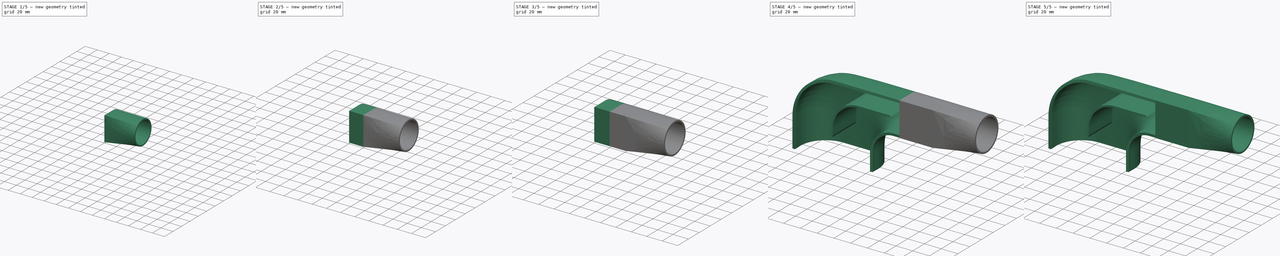
[diagram: build sequence overview — one tinted view per stage of 5, left to right]
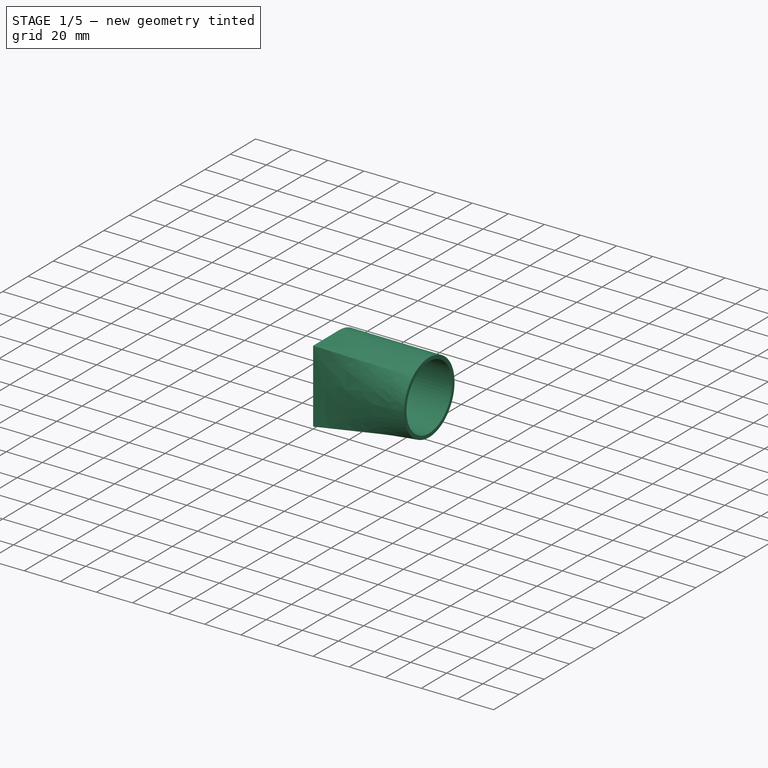
[diagram: stage 1 of 5 — iso view after this stage's code; geometry added in this stage tinted green]
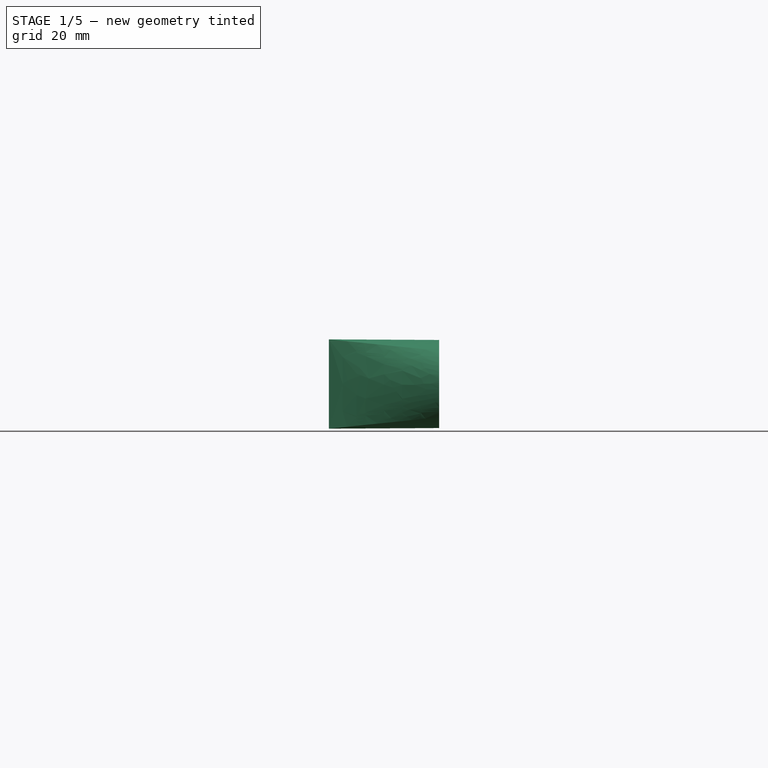
[diagram: stage 1 of 5 — front view after this stage's code; geometry added in this stage tinted green]
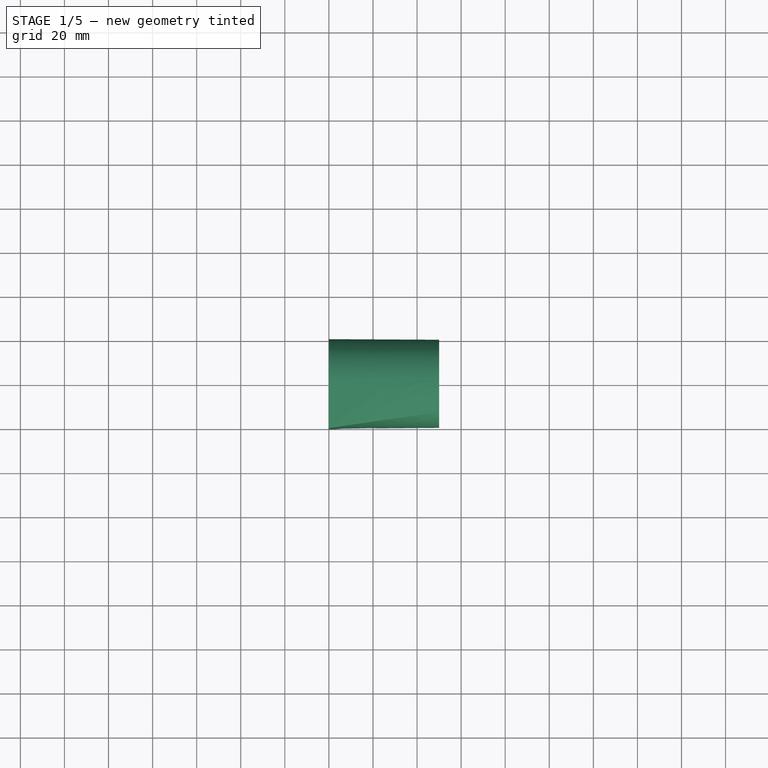
[diagram: stage 1 of 5 — top view after this stage's code; geometry added in this stage tinted green]
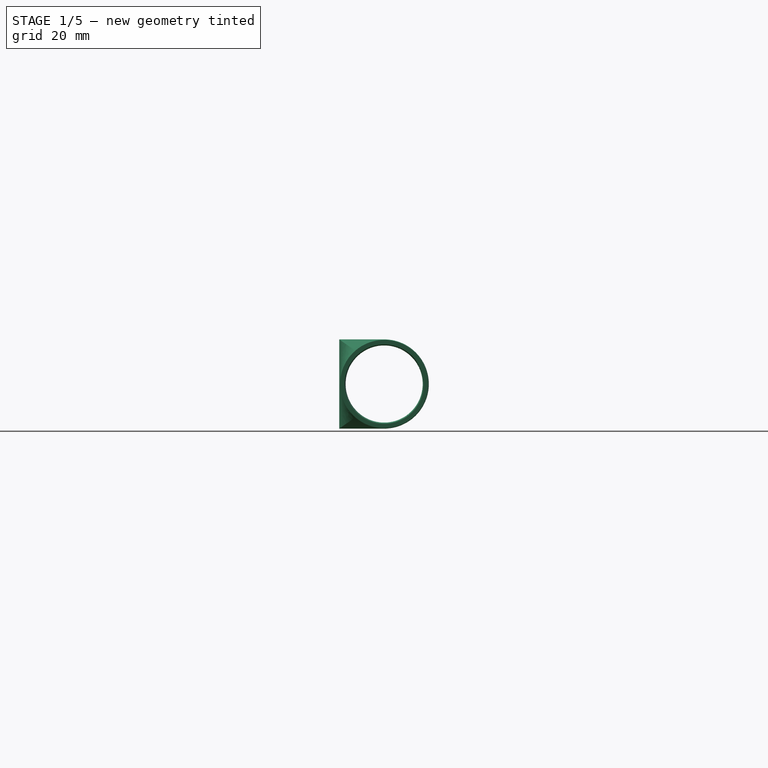
[diagram: stage 1 of 5 — right view after this stage's code; geometry added in this stage tinted green]
FCSTD DOCUMENT  (FreeCAD 2021.911R24301 +3846 (Git))
Label: router
License: All rights reserved
LicenseURL: http://en.wikipedia.org/wiki/All_rights_reserved
objects: Sketcher::SketchObject×8, Sketcher::SketchExport×8, Part::Loft×6, Part::FeaturePython×5, Part::MultiFuse×4, Part::Cut×3, Part::RuledSurface×1, App::FeaturePython×1, Part::Offset×1, Part::Extrusion×1
note: 38 computed .brp shape members not serialized (recipe doc carries the construction recipe); baked Part::Feature solids carry a one-line shape summary decoded from their .brp

FEATURE [Sketcher::SketchObject] Sketch007
  Exports = -> [Export006,Export007]
  ExternalGeometry = -> [Sketch006]
  FullyConstrained = true
  Placement = pos=(170,0,0) rot=(0.57735,0.57735,0.57735;2.0944rad)
  sketch-geometry (2):
    g0: Circle CenterX=20.4075 CenterY=65.897 CenterZ=0 NormalX=0 NormalY=0 NormalZ=1 AngleXU=0 Radius=18
    g1: Circle CenterX=20.4075 CenterY=65.897 CenterZ=0 NormalX=0 NormalY=0 NormalZ=1 AngleXU=0 Radius=20
  constraints (4):
    c: Coincident(g0,g-3)
    c: Coincident(g1,g0)
    c: Diameter(g1) = 40
    c: Diameter(g0) = 36
FEATURE [Sketcher::SketchExport] Export006
  Base = -> Sketch007
  BaseRefs = -> Sketch007 [edge2]
  Placement = pos=(170,0,0) rot=(0.57735,0.57735,0.57735;2.0944rad)
  Refs = ;g3.edge2
  SyncPlacement = true
FEATURE [Sketcher::SketchExport] Export007
  Base = -> Sketch007
  BaseRefs = -> Sketch007 [edge1]
  Placement = pos=(170,0,0) rot=(0.57735,0.57735,0.57735;2.0944rad)
  Refs = ;g2.edge1
  SyncPlacement = true
FEATURE [Part::Loft] Loft004
  Closed = false
  MaxDegree = 5
  Ruled = false
  Sections = -> [Export005,Export007]
  Solid = true
FEATURE [Part::Loft] Loft005
  Closed = false
  MaxDegree = 5
  Ruled = false
  Sections = -> [Export004,Export006]
  Solid = true
FEATURE [Part::Cut] Cut002
  Base = -> Loft005
  Refine = true
  Tool = -> Loft004
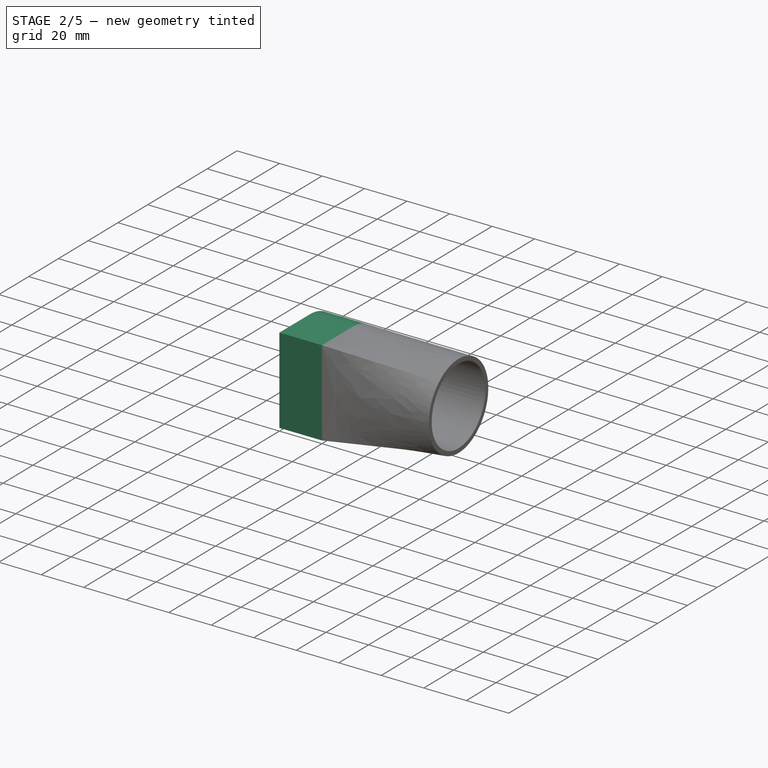
[diagram: stage 2 of 5 — iso view after this stage's code; geometry added in this stage tinted green]
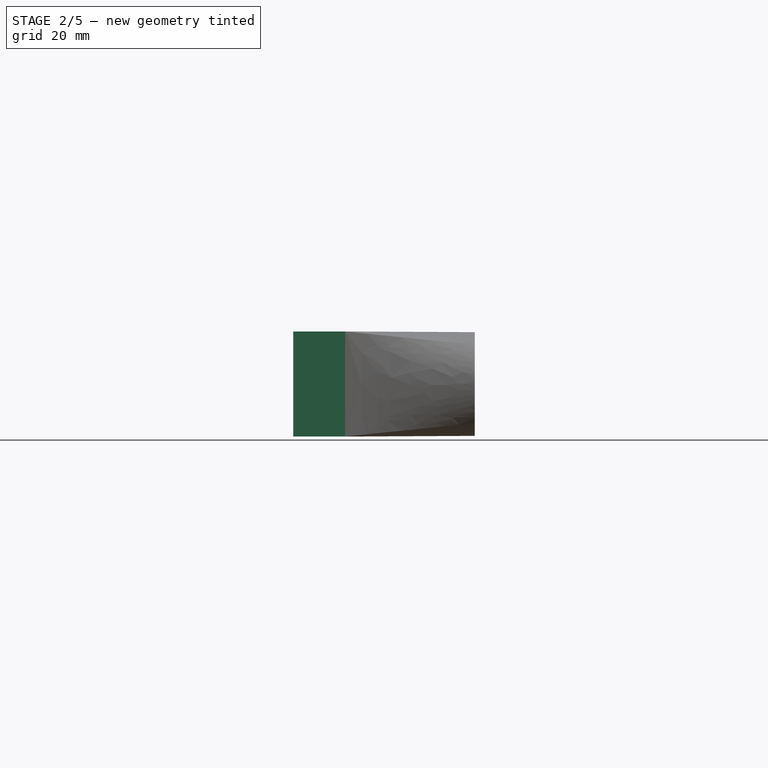
[diagram: stage 2 of 5 — front view after this stage's code; geometry added in this stage tinted green]
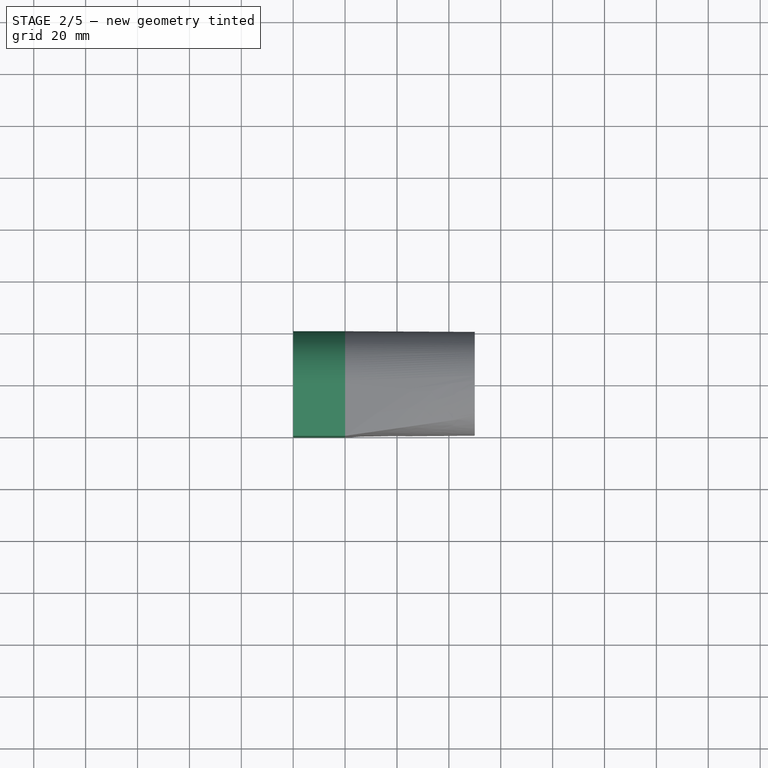
[diagram: stage 2 of 5 — top view after this stage's code; geometry added in this stage tinted green]
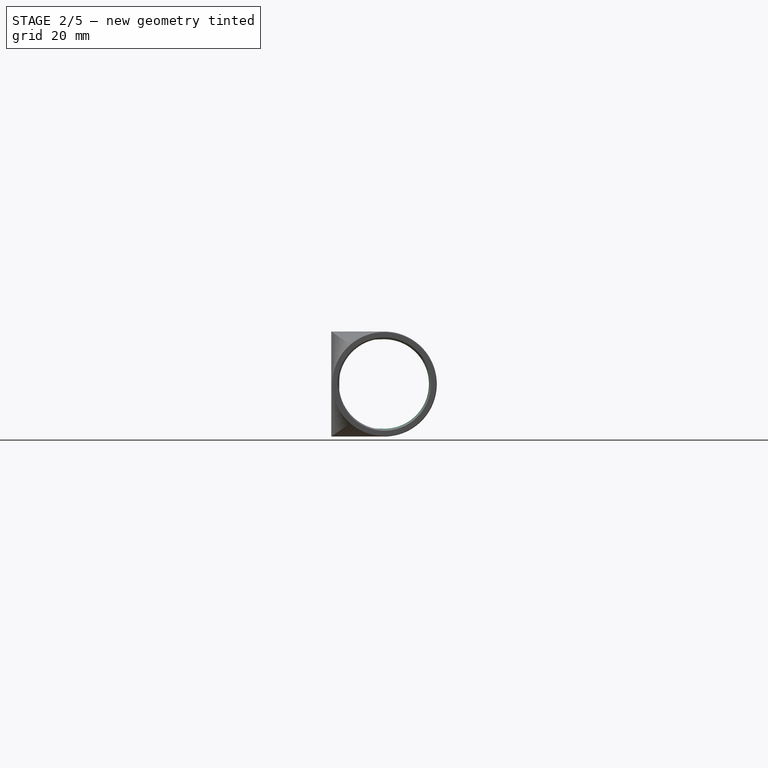
[diagram: stage 2 of 5 — right view after this stage's code; geometry added in this stage tinted green]
FEATURE [Sketcher::SketchObject] Sketch006
  Exports = -> [Export004,Export005]
  ExternalGeometry = -> [Sketch005]
  FullyConstrained = true
  Placement = pos=(120,0,0) rot=(0.57735,0.57735,0.57735;2.0944rad)
  sketch-geometry (5):
    g0: Circle CenterX=20.4075 CenterY=65.897 CenterZ=0 NormalX=0 NormalY=0 NormalZ=1 AngleXU=0 Radius=17.5
    g1: ArcOfCircle CenterX=20.4075 CenterY=65.897 CenterZ=0 NormalX=0 NormalY=0 NormalZ=1 AngleXU=0 Radius=20.25 StartAngle=4.71239 EndAngle=7.85398
    g2: LineSegment StartX=20.4075 StartY=86.147 StartZ=0 EndX=0 EndY=86.147 EndZ=0
    g3: LineSegment StartX=0 StartY=86.147 StartZ=0 EndX=0 EndY=45.647 EndZ=0
    g4: LineSegment StartX=0 StartY=45.647 StartZ=0 EndX=20.4075 EndY=45.647 EndZ=0
  constraints (11):
    c: Coincident(g0,g-4)
    c: Coincident(g1,g0)
    c: Coincident(g1,g-3)
    c: Coincident(g1,g-3)
    c: Coincident(g2,g1)
    c: Coincident(g2,g-6)
    c: Coincident(g3,g2)
    c: Coincident(g3,g-5)
    c: Coincident(g4,g3)
    c: Coincident(g4,g1)
    c: Diameter(g0) = 35
FEATURE [Sketcher::SketchExport] Export004
  Base = -> Sketch006
  BaseRefs = -> Sketch006 [edge3,edge2,edge5,edge4]
  Placement = pos=(120,0,0) rot=(0.57735,0.57735,0.57735;2.0944rad)
  Refs = ;g7.edge3 | ;g4.edge2 | ;g9.edge5 | ;g8.edge4
  SyncPlacement = true
FEATURE [Sketcher::SketchExport] Export005
  Base = -> Sketch006
  BaseRefs = -> Sketch006 [edge1]
  Placement = pos=(120,0,0) rot=(0.57735,0.57735,0.57735;2.0944rad)
  Refs = ;g3.edge1
  SyncPlacement = true
FEATURE [Part::Loft] Loft002
  Closed = false
  MaxDegree = 5
  Ruled = false
  Sections = -> [Export003,Export005]
  Solid = true
FEATURE [Part::Loft] Loft003
  Closed = false
  MaxDegree = 5
  Ruled = false
  Sections = -> [Export002,Export004]
  Solid = true
FEATURE [Part::Cut] Cut001
  Base = -> Loft003
  Refine = true
  Tool = -> Loft002
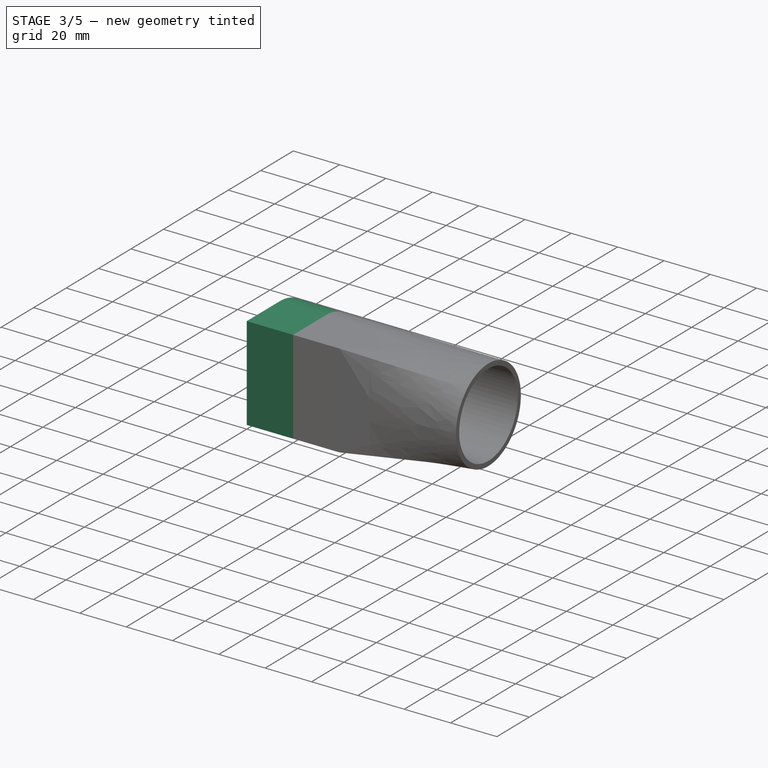
[diagram: stage 3 of 5 — iso view after this stage's code; geometry added in this stage tinted green]
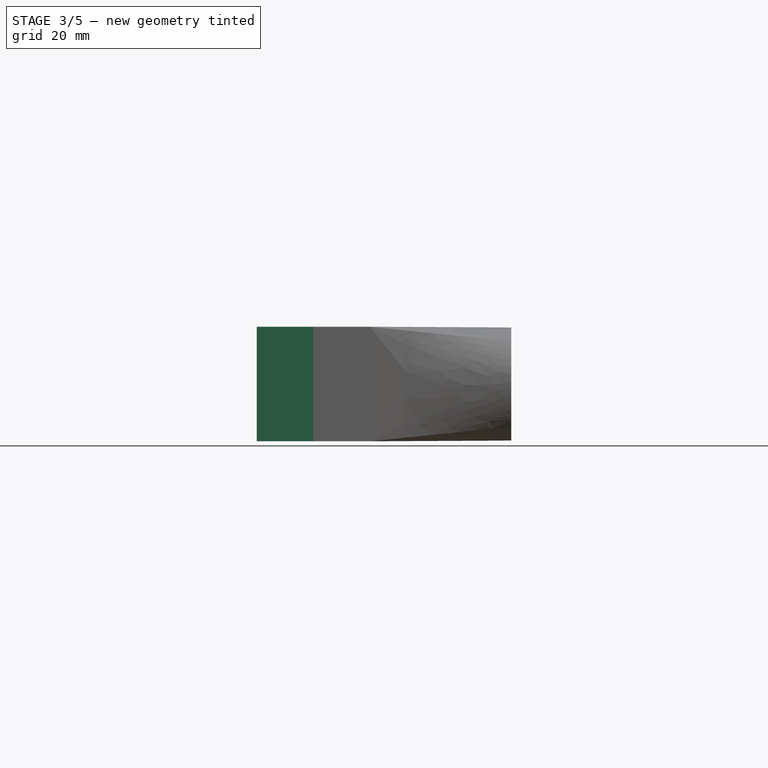
[diagram: stage 3 of 5 — front view after this stage's code; geometry added in this stage tinted green]
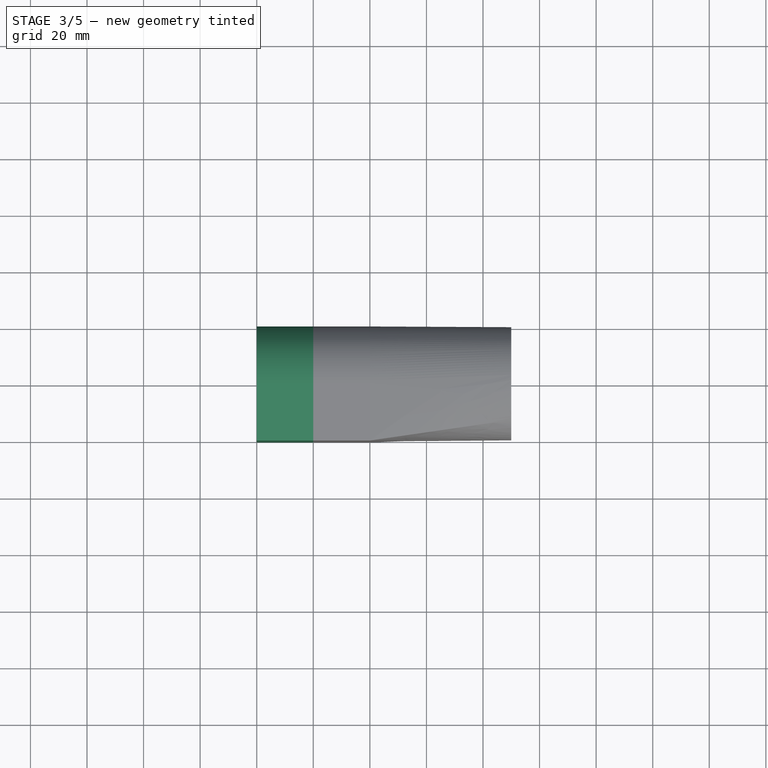
[diagram: stage 3 of 5 — top view after this stage's code; geometry added in this stage tinted green]
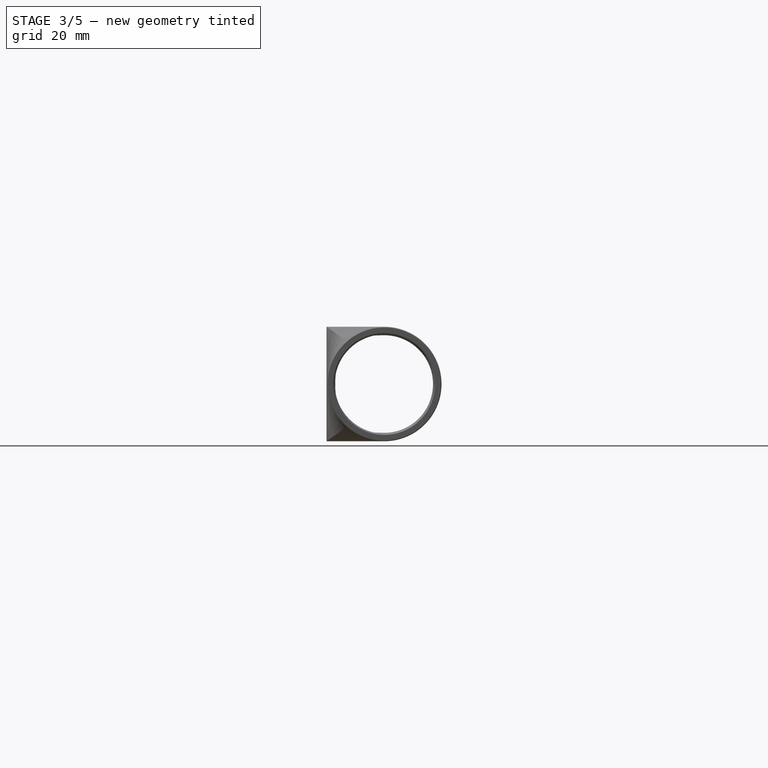
[diagram: stage 3 of 5 — right view after this stage's code; geometry added in this stage tinted green]
FEATURE [Sketcher::SketchObject] Sketch004
  Exports = -> [Export001,Export]
  ExternalGeometry = -> [Fusion,Approximation_Curve]
  FullyConstrained = true
  Placement = pos=(80,0,0) rot=(0.57735,0.57735,0.57735;2.0944rad)
  sketch-geometry (9):
    g0: ArcOfCircle CenterX=20.4075 CenterY=65.897 CenterZ=0 NormalX=0 NormalY=0 NormalZ=1 AngleXU=0 Radius=17.25 StartAngle=4.71239 EndAngle=7.85398
    g1: LineSegment [constr] StartX=20.4075 StartY=65.897 StartZ=0 EndX=1.78e-14 EndY=65.897 EndZ=0
    g2: LineSegment StartX=0.2 StartY=83.147 StartZ=0 EndX=0.2 EndY=48.647 EndZ=0
    g3: LineSegment StartX=20.4075 StartY=83.147 StartZ=0 EndX=0.2 EndY=83.147 EndZ=0
    g4: LineSegment StartX=0.2 StartY=48.647 StartZ=0 EndX=20.4075 EndY=48.647 EndZ=0
    g5: LineSegment StartX=0 StartY=86.147 StartZ=0 EndX=20.4075 EndY=86.147 EndZ=0
    g6: LineSegment StartX=0 StartY=45.647 StartZ=0 EndX=20.4075 EndY=45.647 EndZ=0
    g7: LineSegment StartX=0 StartY=86.147 StartZ=0 EndX=0 EndY=45.647 EndZ=0
    g8: ArcOfCircle CenterX=20.4075 CenterY=65.897 CenterZ=0 NormalX=0 NormalY=0 NormalZ=1 AngleXU=0 Radius=20.25 StartAngle=4.71239 EndAngle=7.85398
  constraints (25):
    c: Coincident(g1,g0)
    c: Horizontal(g1)
    c: Diameter(g0) = 34.5
    c: DistanceX(g-3,g0) = 20
    c: Vertical(g2)
    c: Horizontal(g3)
    c: Coincident(g2,g3)
    c: Symmetric(g-4,g-4,g1)
    c: DistanceX(g-4,g2) = 0.2
    c: Coincident(g4,g2)
    c: Horizontal(g4)
    c: Tangent(g4,g0) = -1.5708
    c: Tangent(g3,g0) = -1.5708
    c: PointOnObject(g5,g-2)
    c: Horizontal(g5)
    c: PointOnObject(g6,g-2)
    c: Horizontal(g6)
    c: Vertical(g3,g5)
    c: Vertical(g0,g6)
    c: Coincident(g7,g5)
    c: Coincident(g8,g0)
    c: Coincident(g8,g5)
    c: Coincident(g8,g6)
    c: DistanceY(g0,g5) = 3
    c: Coincident(g6,g7)
FEATURE [Sketcher::SketchObject] Sketch005
  Exports = -> [Export002,Export003]
  ExternalGeometry = -> [Sketch004]
  FullyConstrained = true
  Placement = pos=(100,0,0) rot=(0.57735,0.57735,0.57735;2.0944rad)
  sketch-geometry (8):
    g0: ArcOfCircle CenterX=20.4075 CenterY=65.897 CenterZ=0 NormalX=0 NormalY=0 NormalZ=1 AngleXU=0 Radius=20.25 StartAngle=4.71239 EndAngle=7.85398
    g1: ArcOfCircle CenterX=20.4075 CenterY=65.897 CenterZ=0 NormalX=0 NormalY=0 NormalZ=1 AngleXU=0 Radius=17.25 StartAngle=4.71239 EndAngle=7.85398
    g2: LineSegment StartX=20.4075 StartY=83.147 StartZ=0 EndX=3 EndY=83.147 EndZ=0
    g3: LineSegment StartX=3 StartY=83.147 StartZ=0 EndX=3 EndY=48.647 EndZ=0
    g4: LineSegment StartX=3 StartY=48.647 StartZ=0 EndX=20.4075 EndY=48.647 EndZ=0
    g5: LineSegment StartX=20.4075 StartY=86.147 StartZ=0 EndX=0 EndY=86.147 EndZ=0
    g6: LineSegment StartX=0 StartY=86.147 StartZ=0 EndX=0 EndY=45.647 EndZ=0
    g7: LineSegment StartX=0 StartY=45.647 StartZ=0 EndX=20.4075 EndY=45.647 EndZ=0
  constraints (20):
    c: Coincident(g0,g-4)
    c: Coincident(g0,g-4)
    c: Coincident(g0,g-5)
    c: Coincident(g1,g0)
    c: Coincident(g1,g-6)
    c: Coincident(g1,g-6)
    c: Coincident(g2,g1)
    c: Horizontal(g2)
    c: Coincident(g3,g2)
    c: Vertical(g3)
    c: Coincident(g4,g3)
    c: Coincident(g4,g1)
    c: Horizontal(g4)
    c: DistanceX(g2) = 3
    c: Coincident(g5,g0)
    c: Coincident(g5,g-3)
    c: Coincident(g6,g5)
    c: Coincident(g6,g-5)
    c: Coincident(g7,g6)
    c: Coincident(g7,g0)
FEATURE [Sketcher::SketchExport] Export001
  Base = -> Sketch004
  BaseRefs = -> Sketch004 [edge3,edge4,edge1,edge5]
  Placement = pos=(80,0,0) rot=(0.57735,0.57735,0.57735;2.0944rad)
  Refs = ;g10.edge3 | ;g11.edge4 | ;g9.edge1 | ;g8.edge5
  SyncPlacement = true
FEATURE [Sketcher::SketchExport] Export
  Base = -> Sketch004
  BaseRefs = -> Sketch004 [edge8,edge6,edge9,edge7]
  Placement = pos=(80,0,0) rot=(0.57735,0.57735,0.57735;2.0944rad)
  Refs = ;g15.edge8 | ;g13.edge6 | ;g16.edge9 | ;g14.edge7
  SyncPlacement = true
FEATURE [Sketcher::SketchExport] Export002
  Base = -> Sketch005
  BaseRefs = -> Sketch005 [edge6,edge1,edge8,edge7]
  Placement = pos=(100,0,0) rot=(0.57735,0.57735,0.57735;2.0944rad)
  Refs = ;g11.edge6 | ;g5.edge1 | ;g13.edge8 | ;g12.edge7
  SyncPlacement = true
FEATURE [Sketcher::SketchExport] Export003
  Base = -> Sketch005
  BaseRefs = -> Sketch005 [edge3,edge2,edge5,edge4]
  Placement = pos=(100,0,0) rot=(0.57735,0.57735,0.57735;2.0944rad)
  Refs = ;g8.edge3 | ;g6.edge2 | ;g10.edge5 | ;g9.edge4
  SyncPlacement = true
FEATURE [Part::Loft] Loft
  Closed = false
  MaxDegree = 5
  Ruled = false
  Sections = -> [Export001,Export003]
  Solid = true
FEATURE [Part::Loft] Loft001
  Closed = false
  MaxDegree = 5
  Ruled = false
  Sections = -> [Export,Export002]
  Solid = true
FEATURE [Part::Cut] Cut
  Base = -> Loft001
  Refine = true
  Tool = -> Loft
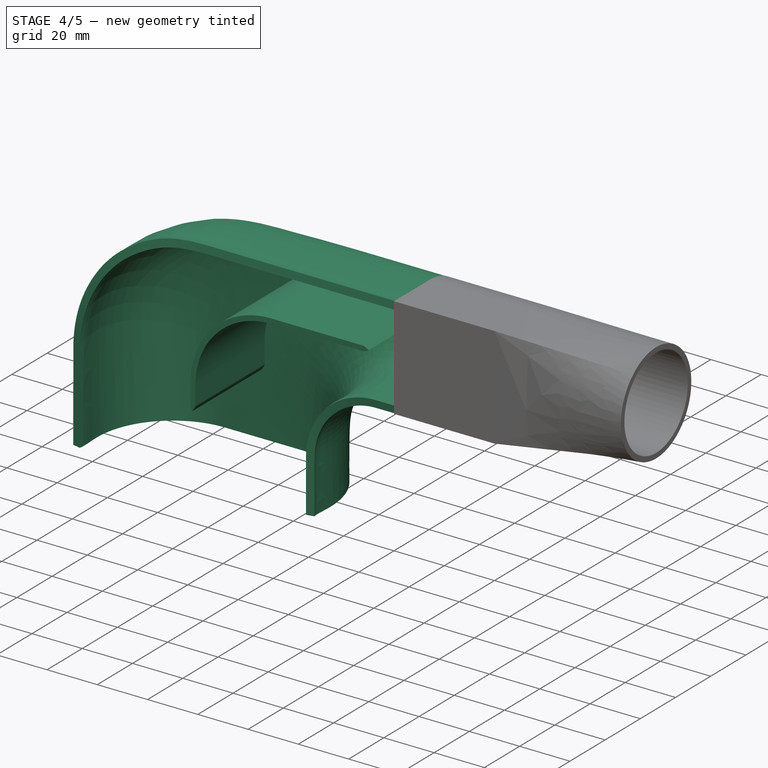
[diagram: stage 4 of 5 — iso view after this stage's code; geometry added in this stage tinted green]
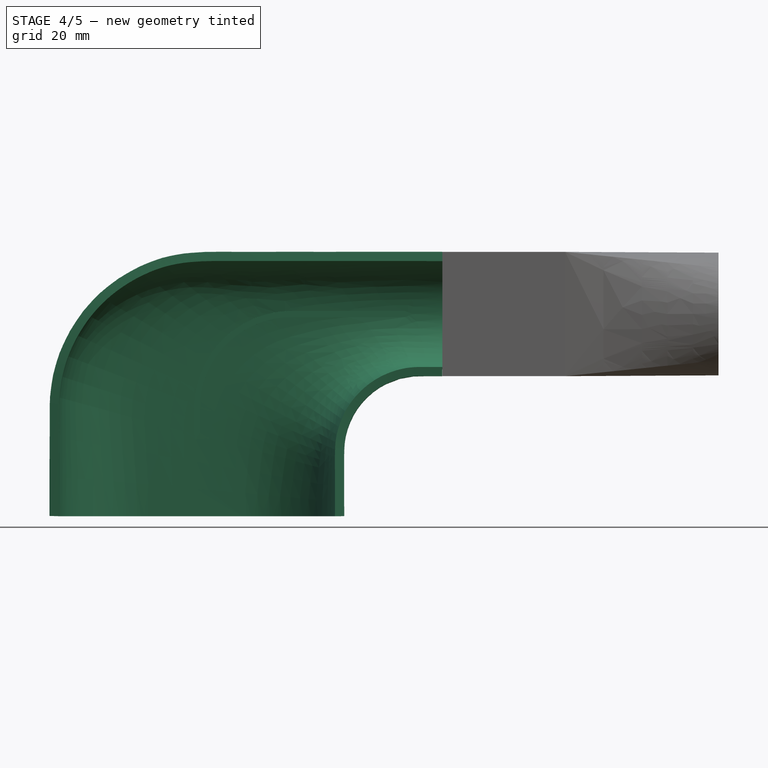
[diagram: stage 4 of 5 — front view after this stage's code; geometry added in this stage tinted green]
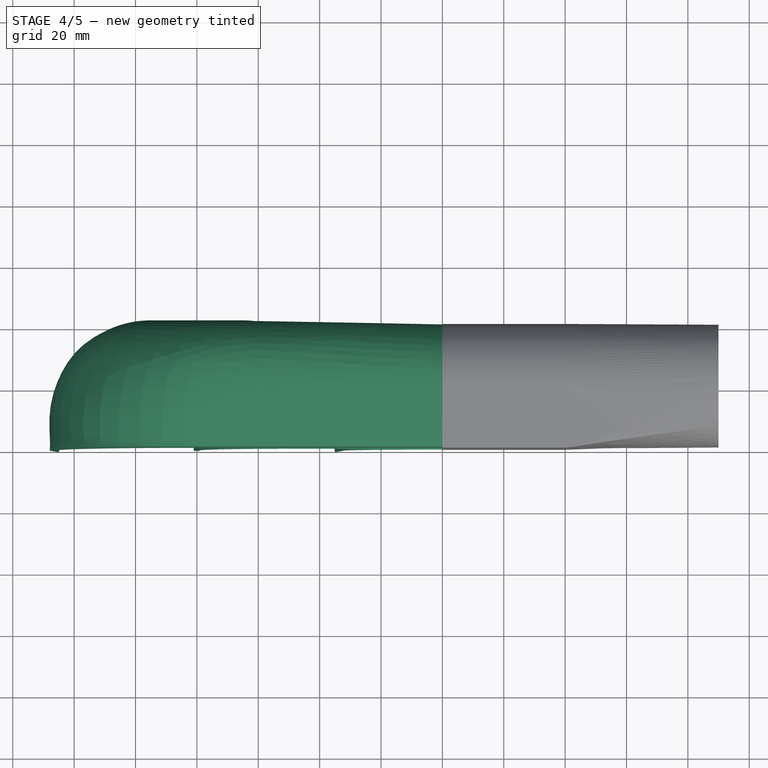
[diagram: stage 4 of 5 — top view after this stage's code; geometry added in this stage tinted green]
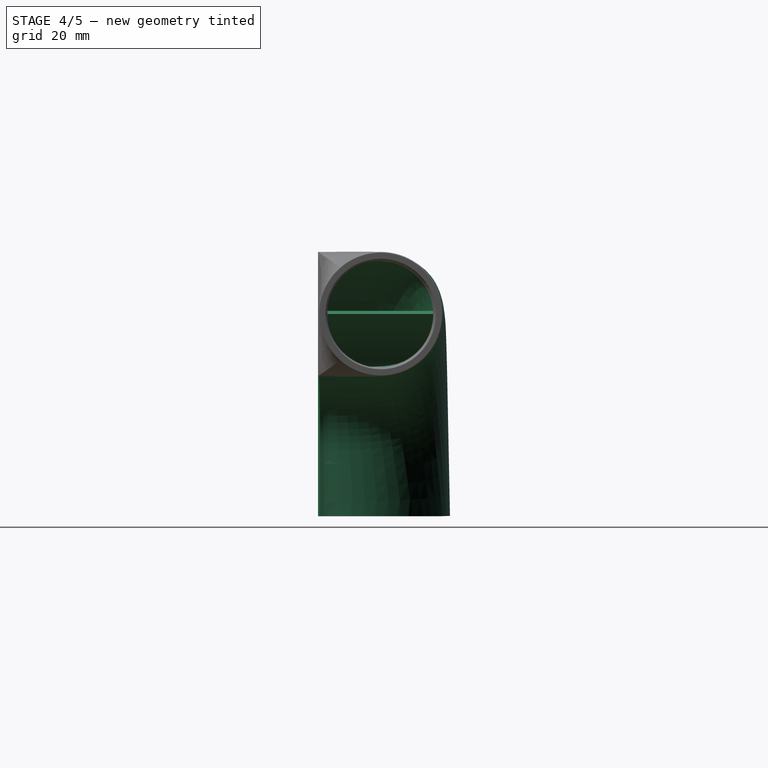
[diagram: stage 4 of 5 — right view after this stage's code; geometry added in this stage tinted green]
FEATURE [Sketcher::SketchObject] Sketch
  FullyConstrained = true
  sketch-geometry (5):
    g0: ArcOfCircle CenterX=-15 CenterY=10 CenterZ=0 NormalX=0 NormalY=0 NormalZ=1 AngleXU=0 Radius=30 StartAngle=1.5708 EndAngle=3.14159
    g1: ArcOfCircle CenterX=15 CenterY=10 CenterZ=0 NormalX=0 NormalY=0 NormalZ=1 AngleXU=0 Radius=30 StartAngle=0 EndAngle=1.5708
    g2: LineSegment StartX=-15 StartY=40 StartZ=0 EndX=15 EndY=40 EndZ=0
    g3: LineSegment StartX=-45 StartY=10 StartZ=0 EndX=-45 EndY=0 EndZ=0
    g4: LineSegment StartX=45 StartY=10 StartZ=0 EndX=45 EndY=0 EndZ=0
  constraints (14):
    c: Equal(g0,g1)
    c: Tangent(g2,g1) = 1.5708
    c: Tangent(g2,g0) = 1.5708
    c: Coincident(g3,g0)
    c: PointOnObject(g3,g-1)
    c: Vertical(g3)
    c: PointOnObject(g4,g-1)
    c: Vertical(g4)
    c: DistanceY(g1) = 40
    c: Tangent(g4,g1) = 1.5708
    c: Tangent(g3,g0)
    c: Symmetric(g0,g1,g-2)
    c: DistanceX(g2,g2) = 30
    c: DistanceY(g4,g4) = 10
FEATURE [Sketcher::SketchObject] Sketch001
  ExternalGeometry = -> [Sketch]
  FullyConstrained = false
  Placement = pos=(0,0,0) rot=(-1,0,0;4.71239rad)
  sketch-geometry (6):
    g0: ArcOfCircle CenterX=2.86304 CenterY=35.284 CenterZ=0 NormalX=0 NormalY=0 NormalZ=1 AngleXU=0 Radius=47.863 StartAngle=1.5708 EndAngle=3.14159
    g1: ArcOfCircle CenterX=72.7393 CenterY=20.9077 CenterZ=0 NormalX=0 NormalY=0 NormalZ=1 AngleXU=0 Radius=27.7393 StartAngle=1.5708 EndAngle=3.14159
    g2: LineSegment StartX=45 StartY=20.9077 StartZ=0 EndX=45 EndY=0 EndZ=0
    g3: LineSegment StartX=-45 StartY=35.284 StartZ=0 EndX=-45 EndY=0 EndZ=0
    g4: LineSegment StartX=2.86304 StartY=83.147 StartZ=0 EndX=79.9875 EndY=83.147 EndZ=0
    g5: LineSegment StartX=72.7393 StartY=48.647 StartZ=0 EndX=79.9875 EndY=48.647 EndZ=0
  constraints (12):
    c: Coincident(g2,g-4)
    c: Vertical(g2)
    c: Coincident(g3,g-3)
    c: Vertical(g3)
    c: Tangent(g2,g1) = -1.5708
    c: Tangent(g3,g0) = -1.5708
    c: Horizontal(g4)
    c: Tangent(g5,g1) = 1.5708
    c: Horizontal(g5)
    c: Tangent(g4,g0) = 1.5708
    c: Vertical(g4,g5)
    c: DistanceY(g5,g4) = 34.5
FEATURE [Sketcher::SketchObject] Sketch002
  ExternalGeometry = -> [Sketch001]
  FullyConstrained = false
  MapMode = 1
  Placement = pos=(79.9875,0,48.647) rot=(0.57735,0.57735,0.57735;2.0944rad)
  Support = -> [Sketch001]
  sketch-geometry (7):
    g0: Circle [constr] CenterX=20.25 CenterY=17.25 CenterZ=0 NormalX=0 NormalY=0 NormalZ=1 AngleXU=0 Radius=17.25
    g1: LineSegment [constr] StartX=7.7e-15 StartY=34.5 StartZ=0 EndX=20.25 EndY=34.5 EndZ=0
    g2: LineSegment [constr] StartX=0 StartY=0 StartZ=0 EndX=20.25 EndY=0 EndZ=0
    g3: LineSegment [constr] StartX=3.8e-15 StartY=17.25 StartZ=0 EndX=3 EndY=17.25 EndZ=0
    g4: LineSegment StartX=1.85e-14 StartY=34.5 StartZ=0 EndX=20.25 EndY=34.5 EndZ=0
    g5: LineSegment StartX=1.08e-14 StartY=0 StartZ=0 EndX=20.25 EndY=0 EndZ=0
    g6: ArcOfCircle CenterX=20.25 CenterY=17.25 CenterZ=0 NormalX=0 NormalY=0 NormalZ=1 AngleXU=0 Radius=17.25 StartAngle=4.72276 EndAngle=7.85217
  constraints (20):
    c: Coincident(g1,g-4)
    c: PointOnObject(g1,g0)
    c: Horizontal(g1)
    c: Coincident(g2,g-3)
    c: PointOnObject(g2,g0)
    c: Tangent(g2,g0)
    c: Horizontal(g2)
    c: Tangent(g0,g1)
    c: PointOnObject(g3,g0)
    c: Horizontal(g3)
    c: Symmetric(g-3,g-4,g3)
    c: DistanceX(g3,g3) = 3
    c: Coincident(g4,g-4)
    c: PointOnObject(g4,g0)
    c: Horizontal(g4)
    c: Coincident(g5,g-3)
    c: PointOnObject(g5,g0)
    c: Horizontal(g5)
    c: Coincident(g6,g0)
    c: PointOnObject(g6,g0)
FEATURE [Part::FeaturePython] JoinCurve002  # WARN: FeaturePython — macro-defined, semantics opaque (R4)
  Active = false
  ApproxTolerance = 0.001
  Continuity = 5
  CornerBreak = false
  DegreeMax = 5
  DegreeMin = 3
  Edges = -> [Sketch001]
  ForceClosed = false
  ForceContact = true
  Parametrization = 0
  Reverse = false
  Samples = 100
  StartOffset = 0
  Tolerance = 0.01
FEATURE [Part::FeaturePython] JoinCurve001  # WARN: FeaturePython — macro-defined, semantics opaque (R4)
  Active = false
  ApproxTolerance = 0.001
  Continuity = 5
  CornerBreak = false
  DegreeMax = 5
  DegreeMin = 3
  Edges = -> [Sketch001]
  ForceClosed = false
  ForceContact = true
  Parametrization = 0
  Reverse = false
  Samples = 100
  StartOffset = 0
  Tolerance = 0.01
FEATURE [Part::FeaturePython] JoinCurve003  # WARN: FeaturePython — macro-defined, semantics opaque (R4)
  Active = false
  ApproxTolerance = 0.001
  Continuity = 5
  CornerBreak = false
  DegreeMax = 5
  DegreeMin = 3
  Edges = -> [Sketch002]
  ForceClosed = false
  ForceContact = true
  Parametrization = 0
  Reverse = false
  Samples = 100
  StartOffset = 0
  Tolerance = 0.01
FEATURE [Part::FeaturePython] JoinCurve  # WARN: FeaturePython — macro-defined, semantics opaque (R4)
  Active = false
  ApproxTolerance = 0.001
  Continuity = 5
  CornerBreak = false
  DegreeMax = 5
  DegreeMin = 3
  Edges = -> [Sketch]
  ForceClosed = false
  ForceContact = true
  Parametrization = 0
  Reverse = false
  Samples = 100
  StartOffset = 0
  Tolerance = 0.01
FEATURE [Part::RuledSurface] RuledSurface
  Curve1 = -> JoinCurve001 [Edge1]
  Curve2 = -> JoinCurve002 [Edge1]
  Orientation = 0
  _Version = 1
FEATURE [App::FeaturePython] Sweep_2_rails  # WARN: FeaturePython — macro-defined, semantics opaque (R4)
  Birail = -> RuledSurface
  Blending = 1
  Extend = false
  Parametrization = 0
  Points = (400) [(79.9875,2.92642e-14,83.147),(79.9875,4.98143,83.147),(79.9875,9.96286,83.147),(79.9875,14.9443,83.1471),(79.9875,19.9257,83.1475),+395 more]
  ProfileSamples = 20
  Profiles = -> [JoinCurve003,JoinCurve]
  RailSamples = 20
FEATURE [Part::FeaturePython] Approximation_Curve  # WARN: FeaturePython — macro-defined, semantics opaque (R4)
  ApproxTolerance = 0.0155356
  ClampEnds = false
  Continuity = 3
  CurvatureWeight = 1
  DegreeMax = 5
  DegreeMin = 3
  FirstIndex = 0
  LastIndex = 19
  LengthWeight = 1
  Method = 0
  Parametrization = 0
  PointObject = -> Sweep_2_rails
  TorsionWeight = 1
FEATURE [Part::Offset] Offset
  Fill = true
  Intersection = false
  Join = 0
  Mode = 0
  SelfIntersection = false
  Source = -> Approximation_Curve
  Value = -3
FEATURE [Sketcher::SketchObject] Sketch003
  ExternalGeometry = -> [Approximation_Curve]
  FullyConstrained = false
  Placement = pos=(0,0,0) rot=(-1,0,0;4.71239rad)
  sketch-geometry (11):
    g0: LineSegment StartX=-1 StartY=27.2391 StartZ=0 EndX=-1 EndY=34.897 EndZ=0
    g1: LineSegment StartX=1 StartY=27.2391 StartZ=0 EndX=1 EndY=34.897 EndZ=0
    g2: ArcOfCircle CenterX=8.89309 CenterY=28.6974 CenterZ=0 NormalX=0 NormalY=0 NormalZ=1 AngleXU=0 Radius=10 StartAngle=3.28795 EndAngle=3.52033
    g3: ArcOfCircle CenterX=-8.10691 CenterY=31.37 CenterZ=0 NormalX=0 NormalY=0 NormalZ=1 AngleXU=0 Radius=10 StartAngle=5.59259 EndAngle=5.85734
    g4: ArcOfCircle CenterX=31 CenterY=34.897 CenterZ=0 NormalX=0 NormalY=0 NormalZ=1 AngleXU=0 Radius=30 StartAngle=1.5708 EndAngle=3.14159
    g5: ArcOfCircle CenterX=31 CenterY=34.897 CenterZ=0 NormalX=0 NormalY=0 NormalZ=1 AngleXU=0 Radius=32 StartAngle=1.5708 EndAngle=3.14159
    g6: LineSegment StartX=31 StartY=66.897 StartZ=0 EndX=67.8422 EndY=66.897 EndZ=0
    g7: LineSegment StartX=31 StartY=64.897 StartZ=0 EndX=67.8422 EndY=64.897 EndZ=0
    g8: ArcOfCircle CenterX=64.7197 CenterY=57.397 CenterZ=0 NormalX=0 NormalY=0 NormalZ=1 AngleXU=0 Radius=10 StartAngle=1.01599 EndAngle=1.25324
    g9: ArcOfCircle CenterX=64.7197 CenterY=74.397 CenterZ=0 NormalX=0 NormalY=0 NormalZ=1 AngleXU=0 Radius=10 StartAngle=5.02995 EndAngle=5.2672
    g10: LineSegment [constr] StartX=69.9875 StartY=65.897 StartZ=0 EndX=79.9875 EndY=65.897 EndZ=0
  constraints (34):
    c: Vertical(g0)
    c: Vertical(g1)
    c: Coincident(g2,g0)
    c: Coincident(g3,g1)
    c: Coincident(g3,g2)
    c: Equal(g3,g2)
    c: Symmetric(g1,g0,g-2)
    c: Equal(g1,g0)
    c: DistanceX(g0,g1) = 2
    c: Tangent(g4,g1) = 1.5708
    c: Vertical(g4,g4)
    c: Coincident(g5,g4)
    c: Coincident(g5,g0)
    c: Vertical(g5,g4)
    c: Coincident(g6,g5)
    c: Horizontal(g6)
    c: Coincident(g7,g4)
    c: Horizontal(g7)
    c: Equal(g7,g6)
    c: Radius(g3) = 10
    c: DistanceX(g3,g2) = 17
    c: Coincident(g8,g6)
    c: Coincident(g9,g7)
    c: Coincident(g9,g8)
    c: Vertical(g8,g9)
    c: DistanceY(g8,g9) = 17
    c: Equal(g3,g9)
    c: Equal(g9,g8)
    c: DistanceY(g2) = 25
    c: Coincident(g10,g8)
    c: Horizontal(g10)
    c: DistanceX(g10,g10) = 10
    c: Symmetric(g-3,g-3,g10)
    c: Radius(g4) = 30
FEATURE [Part::Extrusion] Extrude
  Base = -> Sketch003
  Dir = (0,-1,3e-16)
  DirMode = 2
  FaceMakerClass = Part::FaceMakerBullseye
  InnerTaperAngle = 0
  InnerTaperAngleRev = 0
  LengthFwd = 40.3
  LengthRev = 0
  Linearize = true
  Reversed = true
  Solid = true
  Symmetric = false
FEATURE [Part::MultiFuse] Fusion
  Refine = true
  Shapes = -> [Extrude,Offset]
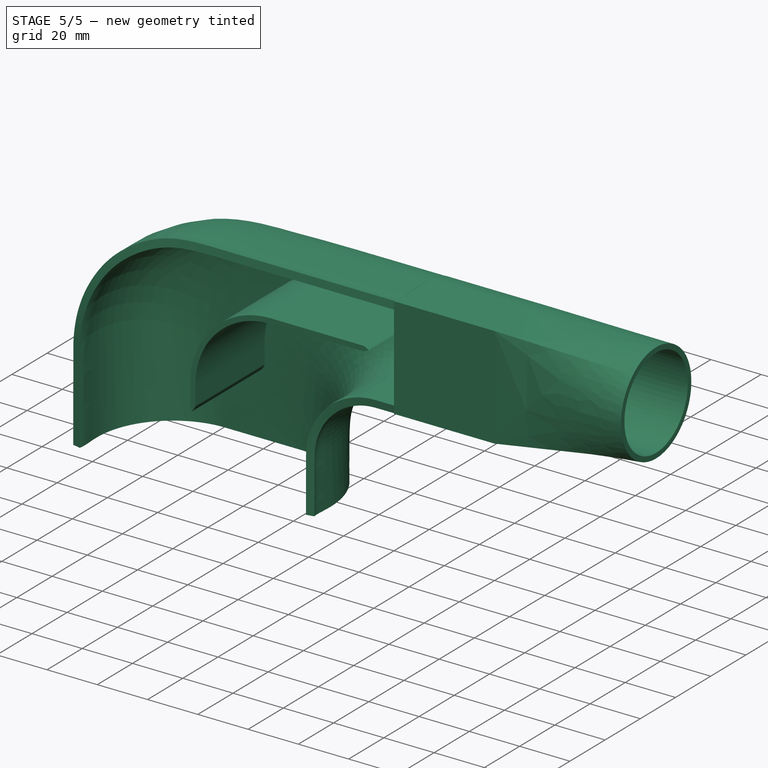
[diagram: stage 5 of 5 — iso view after this stage's code; geometry added in this stage tinted green]
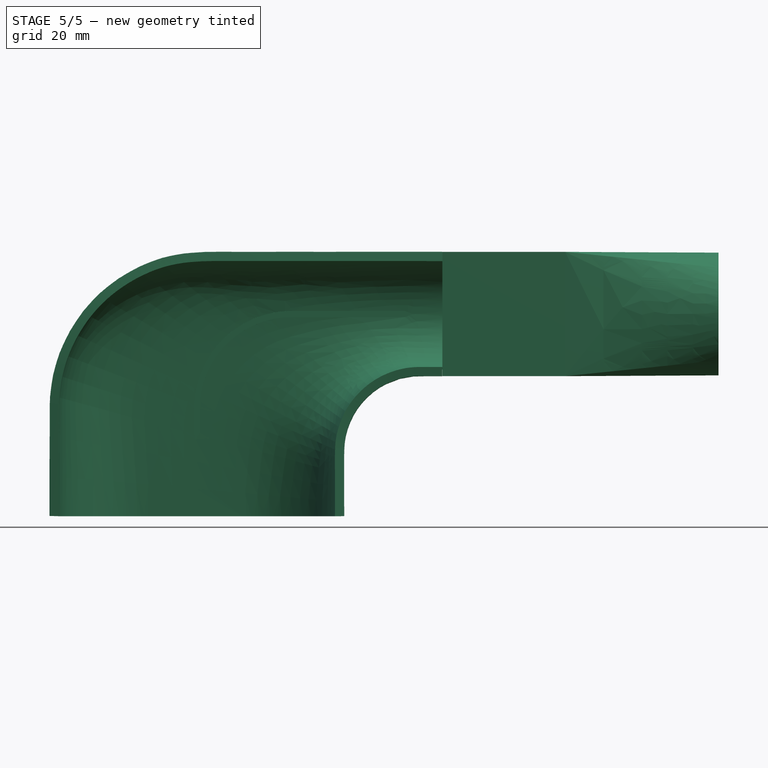
[diagram: stage 5 of 5 — front view after this stage's code; geometry added in this stage tinted green]
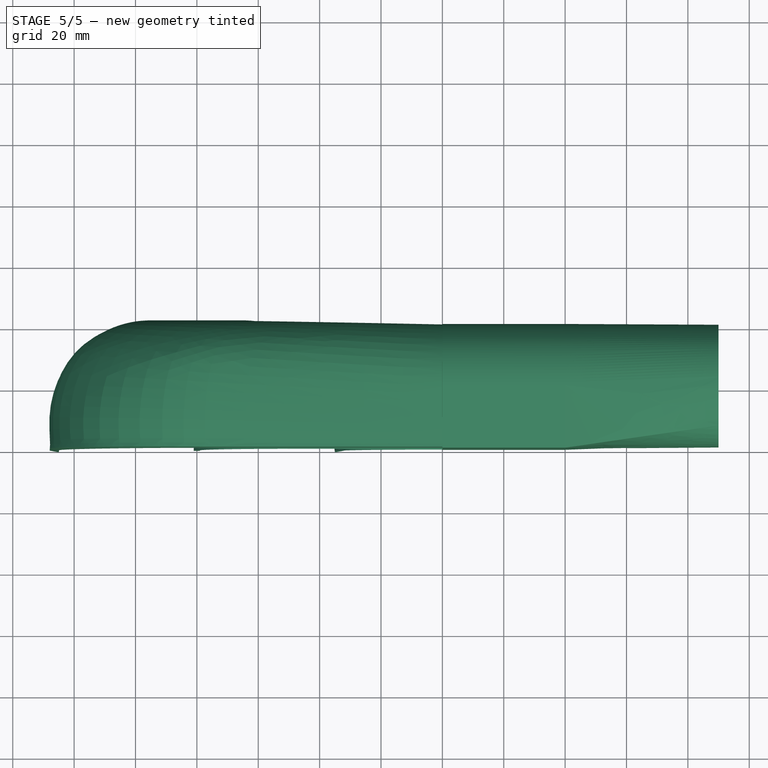
[diagram: stage 5 of 5 — top view after this stage's code; geometry added in this stage tinted green]
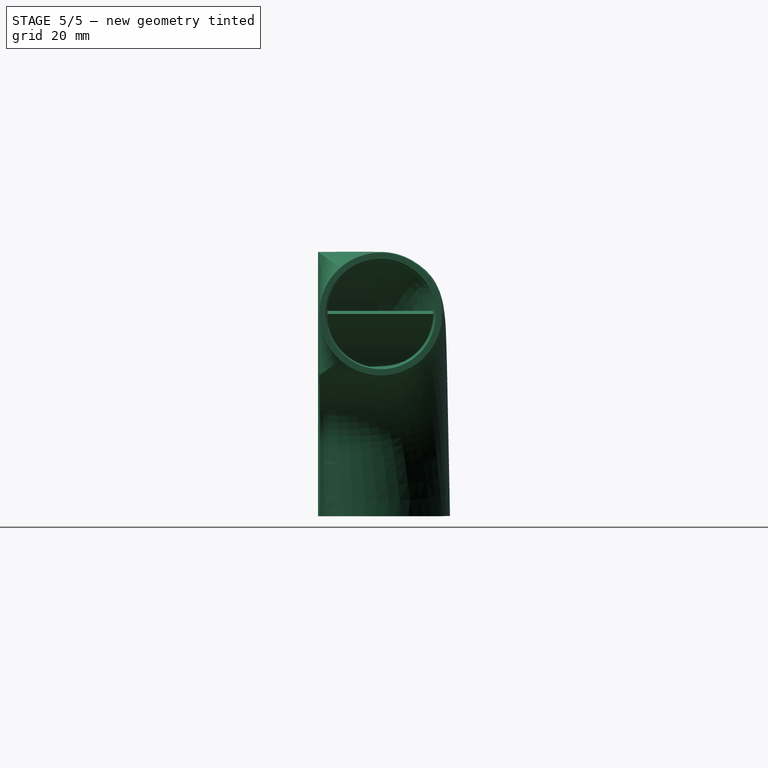
[diagram: stage 5 of 5 — right view after this stage's code; geometry added in this stage tinted green]
FEATURE [Part::MultiFuse] Fusion001
  Refine = true
  Shapes = -> [Cut,Fusion]
FEATURE [Part::MultiFuse] Fusion002
  Refine = true
  Shapes = -> [Cut001,Fusion001]
FEATURE [Part::MultiFuse] Fusion003
  Refine = true
  Shapes = -> [Cut002,Fusion002]
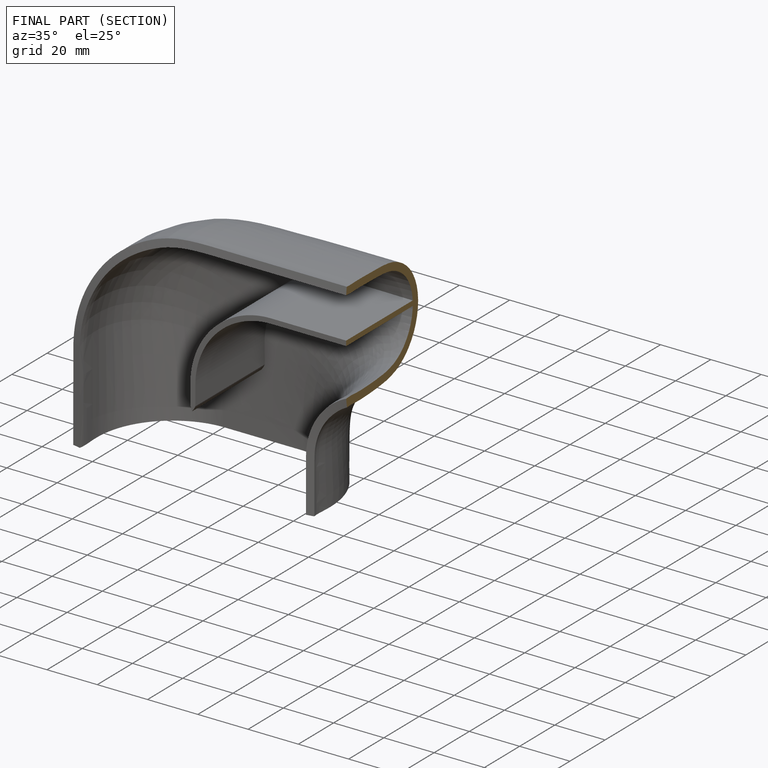
[diagram: finished part — half-section view (interior)]
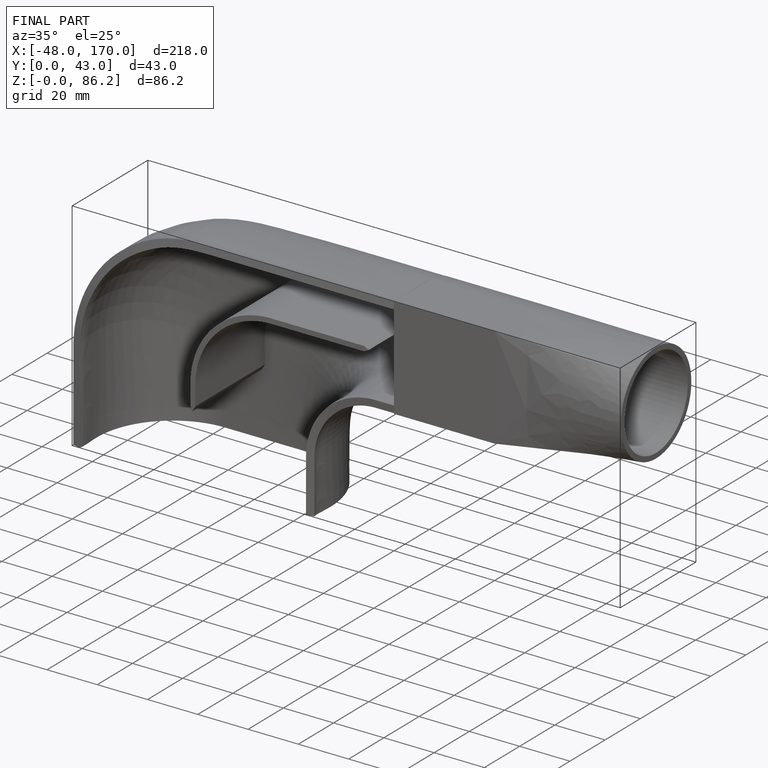
[diagram: finished part — iso view with bounding-box wireframe]
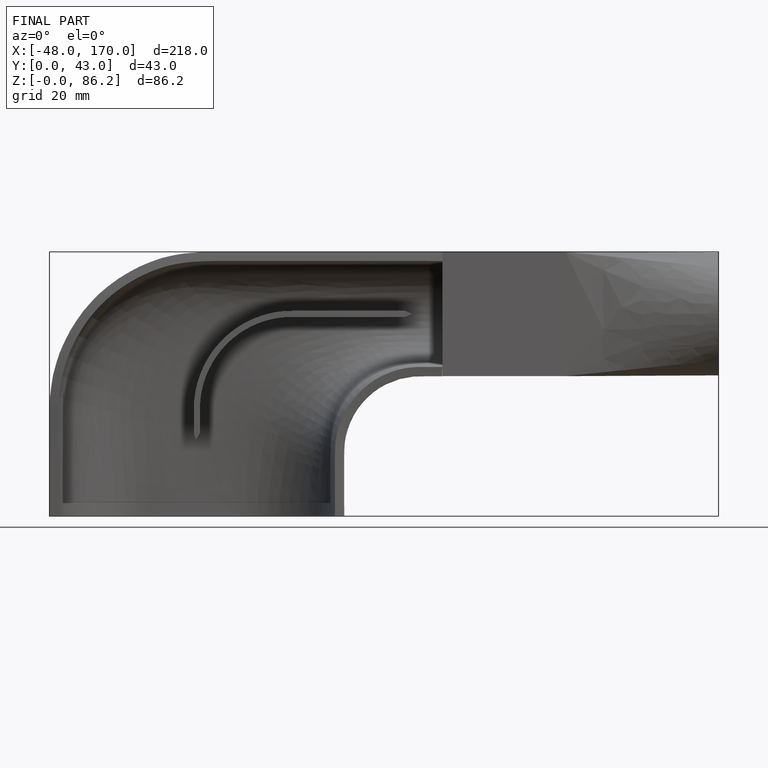
[diagram: finished part — front view with bounding-box wireframe]
